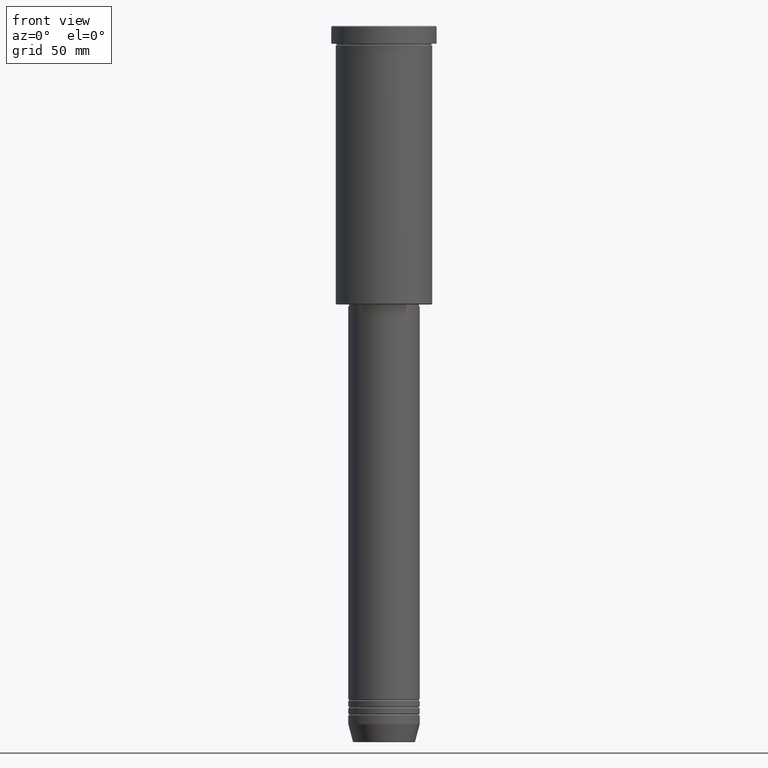
[diagram: clean part render]
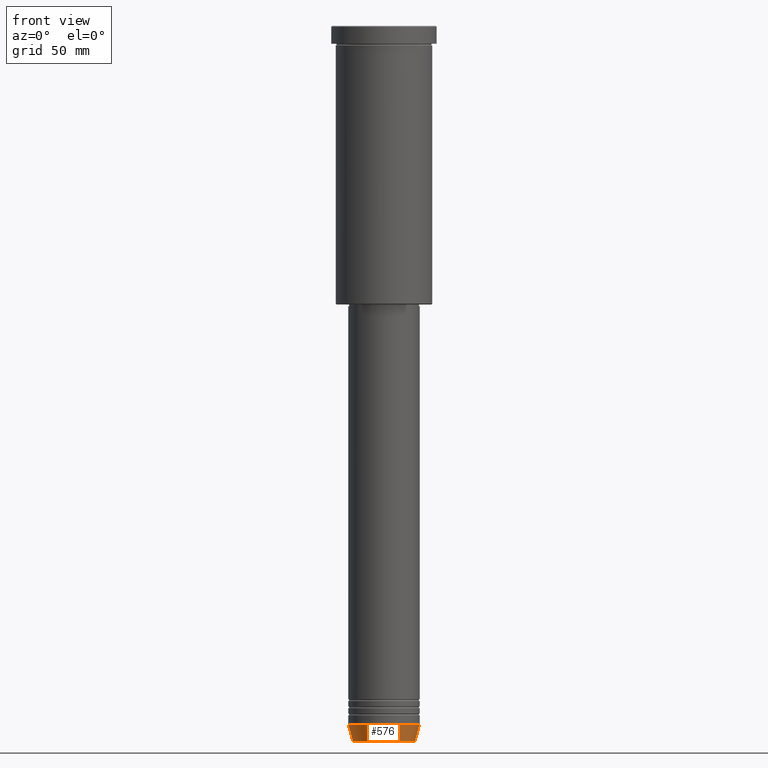
[diagram: same view with one face highlighted and labeled with its STEP entity id]
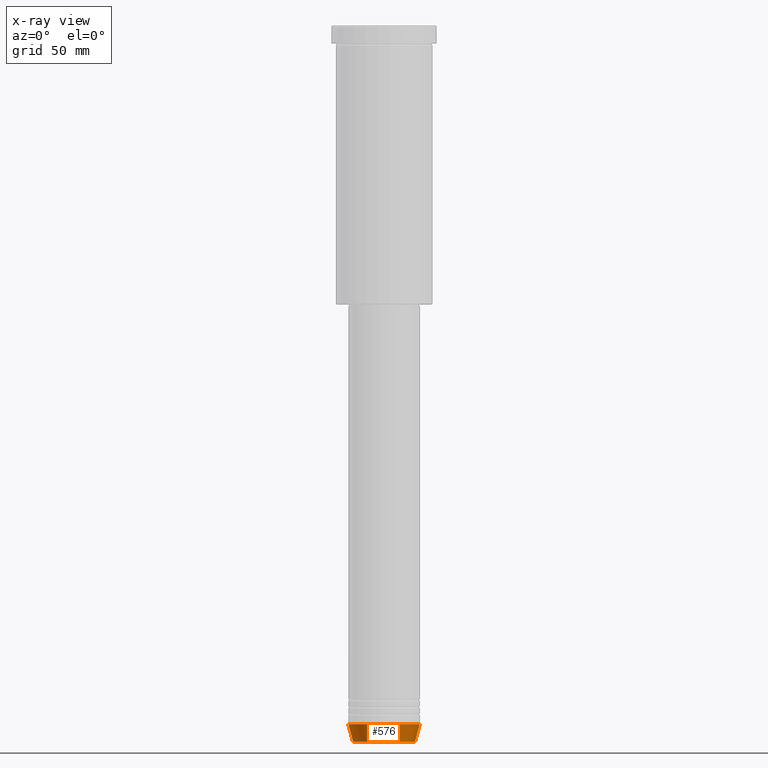
[diagram: x-ray of the same camera — body ghosted, the highlighted face saturated]
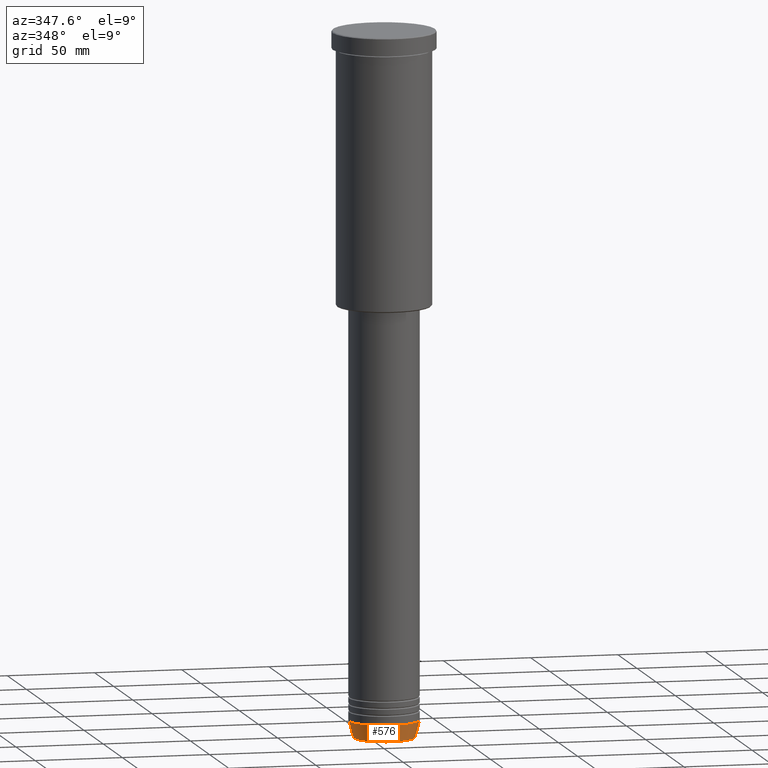
[diagram: same view with one face highlighted and labeled with its STEP entity id]
A machine part, front view. The second image highlights one B-rep face of the part: STEP entity #576.
The next image is the same camera in x-ray: the body ghosted, the highlighted face saturated — about 0% of this face is hidden behind the body in this view.
A second angle (auxiliary view) of the same face is appended — the face is thin or edge-on in the first view.
In plain terms, the highlighted conical surface has half-angle 15 deg.
Its self-contained STEP definition (entity closure, byte-faithful):
#64 = CARTESIAN_POINT ( 'NONE',  ( 17.41980749484382684, 0.000000000000000000, -400.6294095225512137 ) ) ;
#95 = DIRECTION ( 'NONE',  ( 1.000000000000000000, 0.000000000000000000, 0.000000000000000000 ) ) ;
#97 = VERTEX_POINT ( 'NONE', #1156 ) ;
#108 = EDGE_CURVE ( 'NONE', #468, #311, #963, .T. ) ;
#114 = VECTOR ( 'NONE', #1094, 1000.000000000000114 ) ;
#152 = DIRECTION ( 'NONE',  ( 1.000000000000000000, 0.000000000000000000, 0.000000000000000000 ) ) ;
#175 = AXIS2_PLACEMENT_3D ( 'NONE', #895, #729, #95 ) ;
#208 = CARTESIAN_POINT ( 'NONE',  ( -20.00000000000000000, 2.449293598294706513E-15, -390.9999999999999432 ) ) ;
#228 = ORIENTED_EDGE ( 'NONE', *, *, #339, .F. ) ;
#267 = ORIENTED_EDGE ( 'NONE', *, *, #555, .T. ) ;
#280 = ORIENTED_EDGE ( 'NONE', *, *, #1159, .T. ) ;
#311 = VERTEX_POINT ( 'NONE', #1019 ) ;
#329 = VECTOR ( 'NONE', #776, 1000.000000000000114 ) ;
#339 = EDGE_CURVE ( 'NONE', #97, #468, #1074, .T. ) ;
#343 = CARTESIAN_POINT ( 'NONE',  ( 0.000000000000000000, 0.000000000000000000, -390.9999999999999432 ) ) ;
#367 = CARTESIAN_POINT ( 'NONE',  ( 20.00000000000000000, 0.000000000000000000, -390.9999999999999432 ) ) ;
#415 = EDGE_LOOP ( 'NONE', ( #228, #280, #267, #1098 ) ) ;
#468 = VERTEX_POINT ( 'NONE', #208 ) ;
#511 = CARTESIAN_POINT ( 'NONE',  ( -20.00000000000000000, 2.449293598294706513E-15, -390.9999999999999432 ) ) ;
#544 = FACE_OUTER_BOUND ( 'NONE', #415, .T. ) ;
#555 = EDGE_CURVE ( 'NONE', #884, #311, #798, .T. ) ;
#569 = AXIS2_PLACEMENT_3D ( 'NONE', #886, #873, #690 ) ;
#576 = ADVANCED_FACE ( 'NONE', ( #544 ), #654, .T. ) ;
#654 = CONICAL_SURFACE ( 'NONE', #175, 20.00000000000000000, 0.2617993877991499074 ) ;
#690 = DIRECTION ( 'NONE',  ( 1.000000000000000000, 0.000000000000000000, 0.000000000000000000 ) ) ;
#729 = DIRECTION ( 'NONE',  ( -0.000000000000000000, -0.000000000000000000, 1.000000000000000000 ) ) ;
#776 = DIRECTION ( 'NONE',  ( -0.2588190451025211836, 3.169619151431770488E-17, 0.9659258262890680902 ) ) ;
#798 = LINE ( 'NONE', #367, #114 ) ;
#873 = DIRECTION ( 'NONE',  ( -0.000000000000000000, -0.000000000000000000, 1.000000000000000000 ) ) ;
#884 = VERTEX_POINT ( 'NONE', #64 ) ;
#886 = CARTESIAN_POINT ( 'NONE',  ( 0.000000000000000000, 0.000000000000000000, -400.6294095225512137 ) ) ;
#895 = CARTESIAN_POINT ( 'NONE',  ( 0.000000000000000000, 0.000000000000000000, -390.9999999999999432 ) ) ;
#963 = CIRCLE ( 'NONE', #997, 20.00000000000000000 ) ;
#997 = AXIS2_PLACEMENT_3D ( 'NONE', #343, #1048, #152 ) ;
#1019 = CARTESIAN_POINT ( 'NONE',  ( 20.00000000000000000, 0.000000000000000000, -390.9999999999999432 ) ) ;
#1048 = DIRECTION ( 'NONE',  ( -0.000000000000000000, -0.000000000000000000, 1.000000000000000000 ) ) ;
#1074 = LINE ( 'NONE', #511, #329 ) ;
#1094 = DIRECTION ( 'NONE',  ( 0.2588190451025211836, 0.000000000000000000, 0.9659258262890680902 ) ) ;
#1098 = ORIENTED_EDGE ( 'NONE', *, *, #108, .F. ) ;
#1156 = CARTESIAN_POINT ( 'NONE',  ( -17.41980749484382684, 2.291302373663531915E-15, -400.6294095225512137 ) ) ;
#1159 = EDGE_CURVE ( 'NONE', #97, #884, #1164, .T. ) ;
#1164 = CIRCLE ( 'NONE', #569, 17.41980749484382684 ) ;